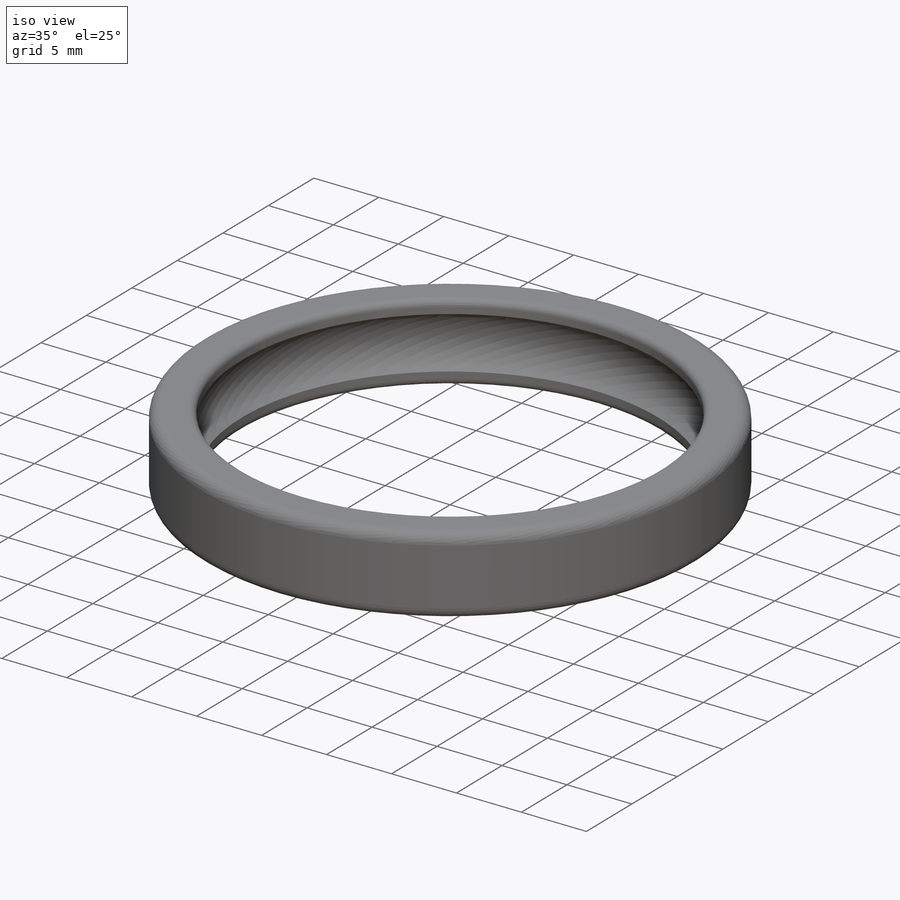
[diagram: iso view]
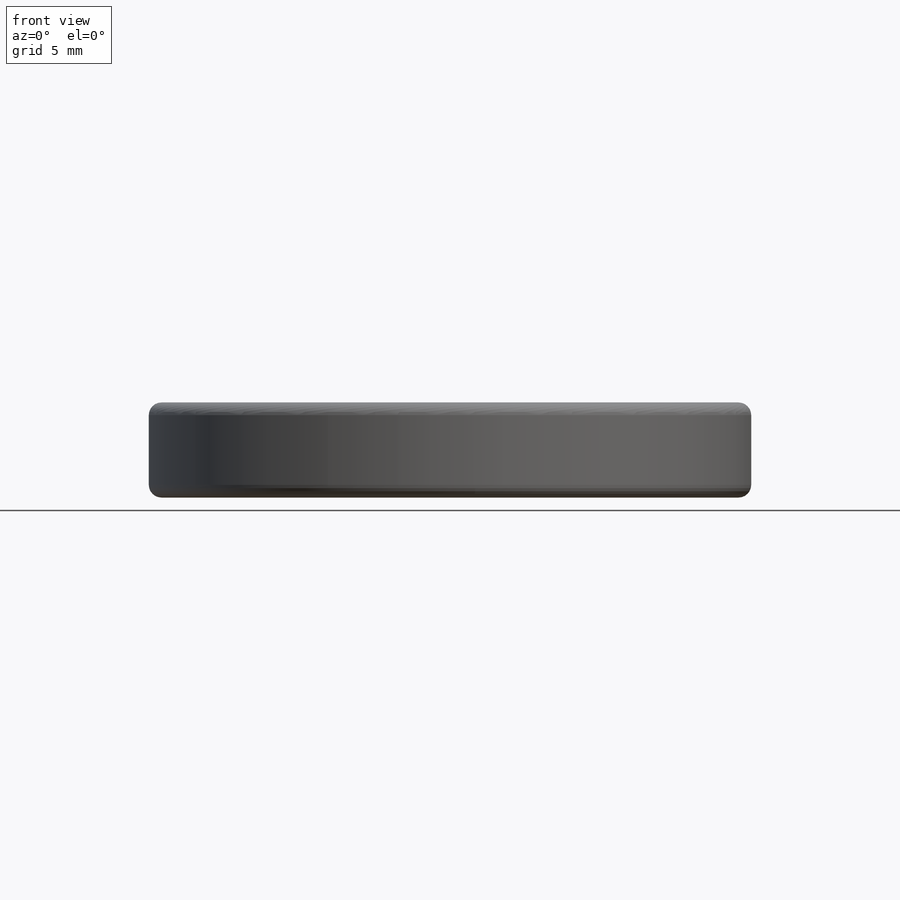
[diagram: front view]
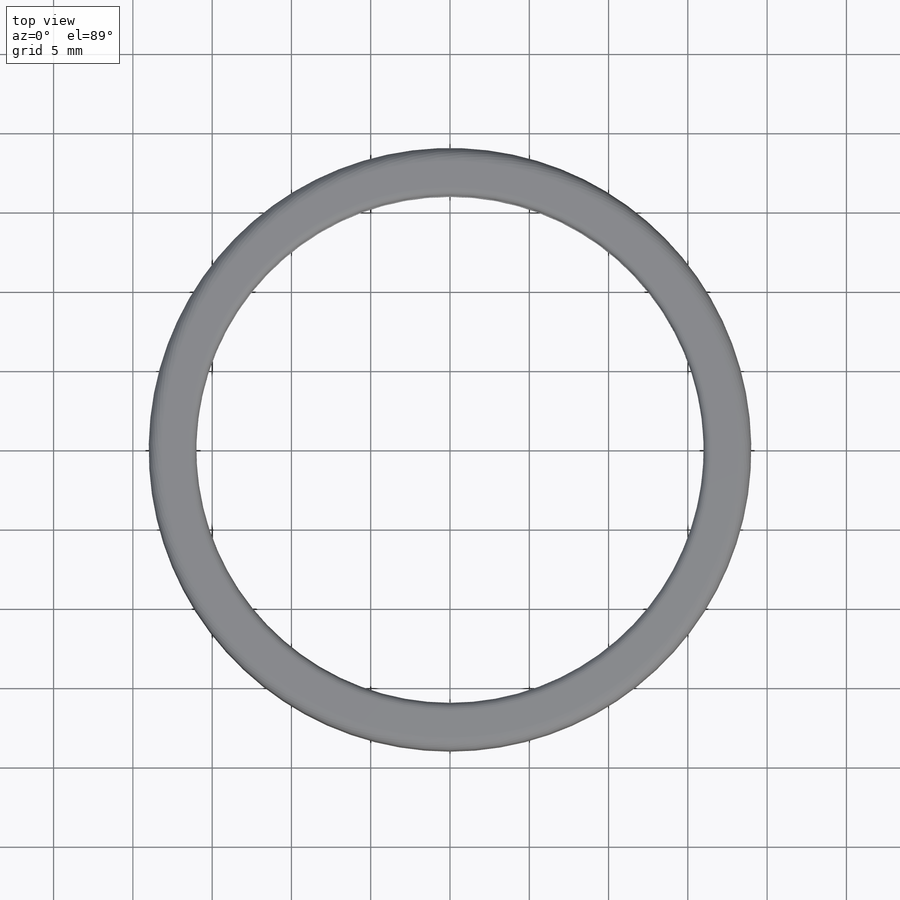
[diagram: top view]
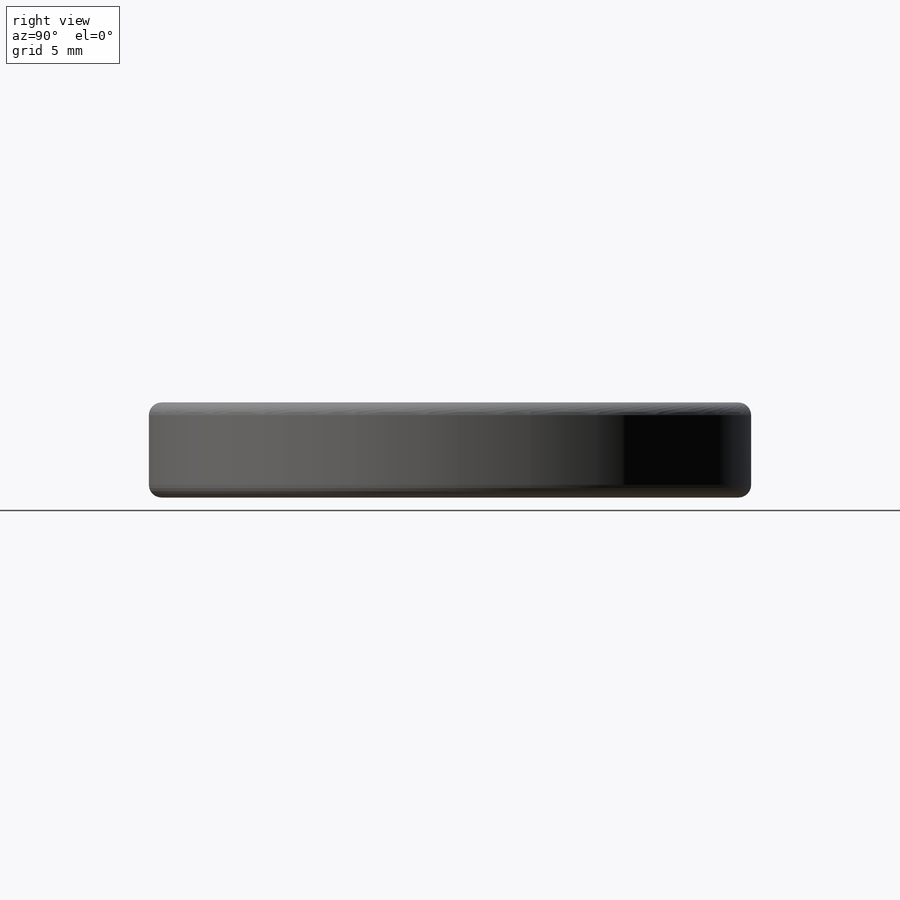
[diagram: right view]
SOLIDWORKS PART (.sldprt)
format: sldprt  version: not decoded by parser v0  size: 242,688 bytes
history: native  units: mm
features: plane x3, fillet x3, sketch x2, material x1, extrude x1 (+13 scaffold rows collapsed)
feature tree (23):
  scaffold x13  (default folders/planes/origin — collapsed)
  material  "材质 <未指定>"
  plane  "前视基准面"
  plane  "上视基准面"
  plane  "右视基准面"
  sketch  "草图1"  dims[D1=32.0mm D2=3.0mm]
  extrude  "凸台-拉伸1"  Depth=6mm
  sketch  "草图2"  dims[c1.D2=5.0mm c1.D1=1.5mm c1.D3=6.0mm c2.D1=360.0deg c2.D2=180.0deg c3.D1=10.0mm c3.D2=0.0mm]
  fillet  "圆角1"  Radius=0.8mm
  fillet  "圆角2"  Radius=0.5mm
  fillet  "圆角3"  Radius=0.5mm
decode coverage: 6 of 6 modeling features carry decoded parameters
note: suppression state not decoded; provenance and decode notes live in map.json
